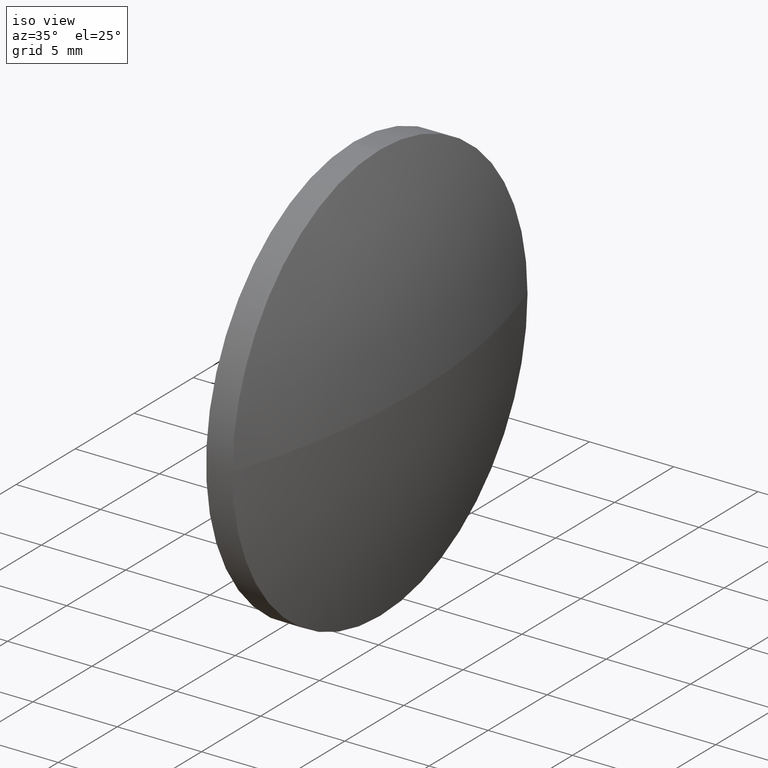
[diagram: clean part render]
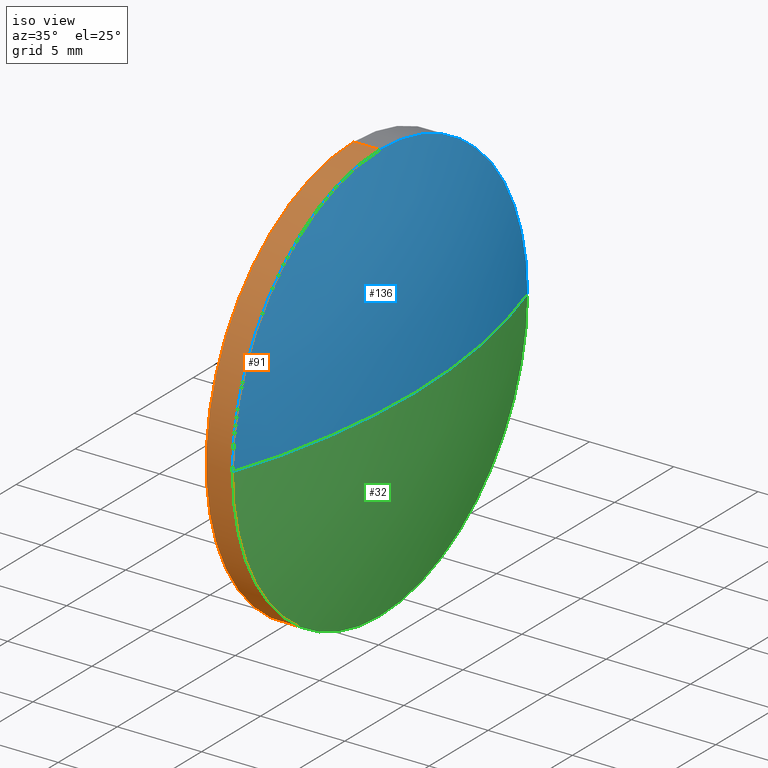
[diagram: same view with three faces highlighted in distinct colors, each labeled with its STEP entity id]
A machine part, iso view with three faces highlighted in distinct colors.
Their STEP definitions:

[orange] entity #91 — the highlighted cylindrical surface (partial cylindrical patch) has radius 12.5 mm, axis along (-1, -0, -0).
#3 = VERTEX_POINT ( 'NONE', #103 ) ;
#4 = FACE_OUTER_BOUND ( 'NONE', #112, .T. ) ;
#5 = CARTESIAN_POINT ( 'NONE',  ( 658.8084244515589500, 181.8210075417636100, 0.0000000000000000000 ) ) ;
#15 = CARTESIAN_POINT ( 'NONE',  ( 657.2484244515591200, 181.8210075417636100, -12.50000000000001100 ) ) ;
#18 = VERTEX_POINT ( 'NONE', #121 ) ;
#29 = CARTESIAN_POINT ( 'NONE',  ( 657.2484244515591200, 181.8210075417636100, 12.50000000000001100 ) ) ;
#39 = CARTESIAN_POINT ( 'NONE',  ( 658.8084244515589500, 181.8210075417636100, 0.0000000000000000000 ) ) ;
#41 = CARTESIAN_POINT ( 'NONE',  ( 658.8084244515589500, 169.3210075417636100, 0.0000000000000000000 ) ) ;
#47 = AXIS2_PLACEMENT_3D ( 'NONE', #168, #125, #96 ) ;
#49 = CARTESIAN_POINT ( 'NONE',  ( 654.8828085487981500, 181.8210075417636100, -12.50000000000001100 ) ) ;
#57 = VECTOR ( 'NONE', #151, 1000.000000000000000 ) ;
#60 = CIRCLE ( 'NONE', #148, 12.50000000000001100 ) ;
#64 = DIRECTION ( 'NONE',  ( -1.000000000000000000, -0.0000000000000000000, -0.0000000000000000000 ) ) ;
#72 = EDGE_CURVE ( 'NONE', #3, #93, #60, .T. ) ;
#76 = AXIS2_PLACEMENT_3D ( 'NONE', #39, #143, #128 ) ;
#81 = DIRECTION ( 'NONE',  ( 0.0000000000000000000, 0.0000000000000000000, 1.000000000000000000 ) ) ;
#84 = VECTOR ( 'NONE', #104, 1000.000000000000000 ) ;
#90 = EDGE_CURVE ( 'NONE', #3, #114, #139, .T. ) ;
#91 = ADVANCED_FACE ( 'NONE', ( #4 ), #147, .T. ) ;
#92 = CIRCLE ( 'NONE', #47, 12.50000000000001100 ) ;
#93 = VERTEX_POINT ( 'NONE', #41 ) ;
#96 = DIRECTION ( 'NONE',  ( 0.0000000000000000000, 0.0000000000000000000, 1.000000000000000000 ) ) ;
#97 = ORIENTED_EDGE ( 'NONE', *, *, #117, .F. ) ;
#103 = CARTESIAN_POINT ( 'NONE',  ( 658.8084244515589500, 181.8210075417636100, -12.50000000000001100 ) ) ;
#104 = DIRECTION ( 'NONE',  ( -1.000000000000000000, -0.0000000000000000000, -0.0000000000000000000 ) ) ;
#112 = EDGE_LOOP ( 'NONE', ( #161, #172, #155, #186, #97 ) ) ;
#114 = VERTEX_POINT ( 'NONE', #15 ) ;
#117 = EDGE_CURVE ( 'NONE', #114, #140, #92, .T. ) ;
#121 = CARTESIAN_POINT ( 'NONE',  ( 658.8084244515589500, 181.8210075417636100, 12.50000000000001100 ) ) ;
#125 = DIRECTION ( 'NONE',  ( -1.000000000000000000, -0.0000000000000000000, -0.0000000000000000000 ) ) ;
#128 = DIRECTION ( 'NONE',  ( 0.0000000000000000000, 0.0000000000000000000, 1.000000000000000000 ) ) ;
#134 = EDGE_CURVE ( 'NONE', #18, #140, #144, .T. ) ;
#135 = AXIS2_PLACEMENT_3D ( 'NONE', #179, #64, #175 ) ;
#138 = DIRECTION ( 'NONE',  ( -1.000000000000000000, -0.0000000000000000000, -0.0000000000000000000 ) ) ;
#139 = LINE ( 'NONE', #49, #84 ) ;
#140 = VERTEX_POINT ( 'NONE', #29 ) ;
#143 = DIRECTION ( 'NONE',  ( -1.000000000000000000, -0.0000000000000000000, -0.0000000000000000000 ) ) ;
#144 = LINE ( 'NONE', #154, #57 ) ;
#146 = EDGE_CURVE ( 'NONE', #93, #18, #165, .T. ) ;
#147 = CYLINDRICAL_SURFACE ( 'NONE', #135, 12.50000000000001100 ) ;
#148 = AXIS2_PLACEMENT_3D ( 'NONE', #5, #138, #81 ) ;
#151 = DIRECTION ( 'NONE',  ( -1.000000000000000000, -0.0000000000000000000, -0.0000000000000000000 ) ) ;
#154 = CARTESIAN_POINT ( 'NONE',  ( 654.8828085487981500, 181.8210075417636100, 12.50000000000001100 ) ) ;
#155 = ORIENTED_EDGE ( 'NONE', *, *, #146, .T. ) ;
#161 = ORIENTED_EDGE ( 'NONE', *, *, #90, .F. ) ;
#165 = CIRCLE ( 'NONE', #76, 12.50000000000001100 ) ;
#168 = CARTESIAN_POINT ( 'NONE',  ( 657.2484244515591200, 181.8210075417636100, 0.0000000000000000000 ) ) ;
#172 = ORIENTED_EDGE ( 'NONE', *, *, #72, .T. ) ;
#175 = DIRECTION ( 'NONE',  ( 0.0000000000000000000, 0.0000000000000000000, 1.000000000000000000 ) ) ;
#179 = CARTESIAN_POINT ( 'NONE',  ( 654.8828085487981500, 181.8210075417636100, 0.0000000000000000000 ) ) ;
#186 = ORIENTED_EDGE ( 'NONE', *, *, #134, .T. ) ;

[blue] entity #136 — the highlighted spherical surface has radius 39.3166 mm.
#2 = ORIENTED_EDGE ( 'NONE', *, *, #20, .T. ) ;
#6 = CARTESIAN_POINT ( 'NONE',  ( 658.8084244515589500, 194.3210075417636900, 1.530808498934192300E-015 ) ) ;
#8 = CIRCLE ( 'NONE', #159, 39.31656862745100500 ) ;
#9 = DIRECTION ( 'NONE',  ( 0.0000000000000000000, -1.224646799147353200E-016, 1.000000000000000000 ) ) ;
#16 = FACE_OUTER_BOUND ( 'NONE', #74, .T. ) ;
#18 = VERTEX_POINT ( 'NONE', #121 ) ;
#20 = EDGE_CURVE ( 'NONE', #63, #21, #8, .T. ) ;
#21 = VERTEX_POINT ( 'NONE', #6 ) ;
#22 = DIRECTION ( 'NONE',  ( -1.000000000000000000, -0.0000000000000000000, -0.0000000000000000000 ) ) ;
#27 = DIRECTION ( 'NONE',  ( 0.0000000000000000000, -1.000000000000000000, 0.0000000000000000000 ) ) ;
#36 = CARTESIAN_POINT ( 'NONE',  ( 621.5318558241079900, 181.8210075417636600, 0.0000000000000000000 ) ) ;
#39 = CARTESIAN_POINT ( 'NONE',  ( 658.8084244515589500, 181.8210075417636100, 0.0000000000000000000 ) ) ;
#40 = CIRCLE ( 'NONE', #45, 39.31656862745103400 ) ;
#41 = CARTESIAN_POINT ( 'NONE',  ( 658.8084244515589500, 169.3210075417636100, 0.0000000000000000000 ) ) ;
#45 = AXIS2_PLACEMENT_3D ( 'NONE', #36, #78, #95 ) ;
#63 = VERTEX_POINT ( 'NONE', #120 ) ;
#66 = SPHERICAL_SURFACE ( 'NONE', #113, 39.31656862745100500 ) ;
#74 = EDGE_LOOP ( 'NONE', ( #106, #2, #184, #145 ) ) ;
#75 = CIRCLE ( 'NONE', #170, 12.50000000000001100 ) ;
#76 = AXIS2_PLACEMENT_3D ( 'NONE', #39, #143, #128 ) ;
#77 = EDGE_CURVE ( 'NONE', #18, #21, #75, .T. ) ;
#78 = DIRECTION ( 'NONE',  ( 0.0000000000000000000, 0.0000000000000000000, -1.000000000000000000 ) ) ;
#89 = EDGE_CURVE ( 'NONE', #63, #93, #40, .T. ) ;
#93 = VERTEX_POINT ( 'NONE', #41 ) ;
#94 = DIRECTION ( 'NONE',  ( 0.0000000000000000000, 0.0000000000000000000, 1.000000000000000000 ) ) ;
#95 = DIRECTION ( 'NONE',  ( -1.000000000000000000, 0.0000000000000000000, 0.0000000000000000000 ) ) ;
#106 = ORIENTED_EDGE ( 'NONE', *, *, #89, .F. ) ;
#107 = CARTESIAN_POINT ( 'NONE',  ( 621.5318558241079900, 181.8210075417636600, 0.0000000000000000000 ) ) ;
#113 = AXIS2_PLACEMENT_3D ( 'NONE', #107, #129, #27 ) ;
#120 = CARTESIAN_POINT ( 'NONE',  ( 660.8484244515590300, 181.8210075417636600, 0.0000000000000000000 ) ) ;
#121 = CARTESIAN_POINT ( 'NONE',  ( 658.8084244515589500, 181.8210075417636100, 12.50000000000001100 ) ) ;
#128 = DIRECTION ( 'NONE',  ( 0.0000000000000000000, 0.0000000000000000000, 1.000000000000000000 ) ) ;
#129 = DIRECTION ( 'NONE',  ( 0.0000000000000000000, 0.0000000000000000000, 1.000000000000000000 ) ) ;
#136 = ADVANCED_FACE ( 'NONE', ( #16 ), #66, .T. ) ;
#143 = DIRECTION ( 'NONE',  ( -1.000000000000000000, -0.0000000000000000000, -0.0000000000000000000 ) ) ;
#145 = ORIENTED_EDGE ( 'NONE', *, *, #146, .F. ) ;
#146 = EDGE_CURVE ( 'NONE', #93, #18, #165, .T. ) ;
#149 = CARTESIAN_POINT ( 'NONE',  ( 621.5318558241079900, 181.8210075417636600, 0.0000000000000000000 ) ) ;
#159 = AXIS2_PLACEMENT_3D ( 'NONE', #149, #9, #163 ) ;
#163 = DIRECTION ( 'NONE',  ( 0.0000000000000000000, -1.000000000000000000, -1.224646799147353200E-016 ) ) ;
#165 = CIRCLE ( 'NONE', #76, 12.50000000000001100 ) ;
#170 = AXIS2_PLACEMENT_3D ( 'NONE', #173, #22, #94 ) ;
#173 = CARTESIAN_POINT ( 'NONE',  ( 658.8084244515589500, 181.8210075417636100, 0.0000000000000000000 ) ) ;
#184 = ORIENTED_EDGE ( 'NONE', *, *, #77, .F. ) ;

[green] entity #32 — the highlighted spherical surface has radius 39.3166 mm.
#3 = VERTEX_POINT ( 'NONE', #103 ) ;
#5 = CARTESIAN_POINT ( 'NONE',  ( 658.8084244515589500, 181.8210075417636100, 0.0000000000000000000 ) ) ;
#6 = CARTESIAN_POINT ( 'NONE',  ( 658.8084244515589500, 194.3210075417636900, 1.530808498934192300E-015 ) ) ;
#7 = DIRECTION ( 'NONE',  ( 0.0000000000000000000, -1.000000000000000000, 0.0000000000000000000 ) ) ;
#8 = CIRCLE ( 'NONE', #159, 39.31656862745100500 ) ;
#9 = DIRECTION ( 'NONE',  ( 0.0000000000000000000, -1.224646799147353200E-016, 1.000000000000000000 ) ) ;
#20 = EDGE_CURVE ( 'NONE', #63, #21, #8, .T. ) ;
#21 = VERTEX_POINT ( 'NONE', #6 ) ;
#32 = ADVANCED_FACE ( 'NONE', ( #171 ), #118, .T. ) ;
#36 = CARTESIAN_POINT ( 'NONE',  ( 621.5318558241079900, 181.8210075417636600, 0.0000000000000000000 ) ) ;
#40 = CIRCLE ( 'NONE', #45, 39.31656862745103400 ) ;
#41 = CARTESIAN_POINT ( 'NONE',  ( 658.8084244515589500, 169.3210075417636100, 0.0000000000000000000 ) ) ;
#45 = AXIS2_PLACEMENT_3D ( 'NONE', #36, #78, #95 ) ;
#52 = CARTESIAN_POINT ( 'NONE',  ( 658.8084244515589500, 181.8210075417636100, 0.0000000000000000000 ) ) ;
#60 = CIRCLE ( 'NONE', #148, 12.50000000000001100 ) ;
#63 = VERTEX_POINT ( 'NONE', #120 ) ;
#67 = DIRECTION ( 'NONE',  ( 0.0000000000000000000, 0.0000000000000000000, 1.000000000000000000 ) ) ;
#72 = EDGE_CURVE ( 'NONE', #3, #93, #60, .T. ) ;
#78 = DIRECTION ( 'NONE',  ( 0.0000000000000000000, 0.0000000000000000000, -1.000000000000000000 ) ) ;
#79 = EDGE_LOOP ( 'NONE', ( #181, #86, #166, #110 ) ) ;
#81 = DIRECTION ( 'NONE',  ( 0.0000000000000000000, 0.0000000000000000000, 1.000000000000000000 ) ) ;
#86 = ORIENTED_EDGE ( 'NONE', *, *, #89, .T. ) ;
#89 = EDGE_CURVE ( 'NONE', #63, #93, #40, .T. ) ;
#93 = VERTEX_POINT ( 'NONE', #41 ) ;
#95 = DIRECTION ( 'NONE',  ( -1.000000000000000000, 0.0000000000000000000, 0.0000000000000000000 ) ) ;
#98 = DIRECTION ( 'NONE',  ( -1.000000000000000000, -0.0000000000000000000, -0.0000000000000000000 ) ) ;
#103 = CARTESIAN_POINT ( 'NONE',  ( 658.8084244515589500, 181.8210075417636100, -12.50000000000001100 ) ) ;
#105 = CARTESIAN_POINT ( 'NONE',  ( 621.5318558241079900, 181.8210075417636600, 0.0000000000000000000 ) ) ;
#110 = ORIENTED_EDGE ( 'NONE', *, *, #157, .F. ) ;
#116 = AXIS2_PLACEMENT_3D ( 'NONE', #52, #98, #67 ) ;
#118 = SPHERICAL_SURFACE ( 'NONE', #122, 39.31656862745100500 ) ;
#119 = DIRECTION ( 'NONE',  ( 0.0000000000000000000, 0.0000000000000000000, 1.000000000000000000 ) ) ;
#120 = CARTESIAN_POINT ( 'NONE',  ( 660.8484244515590300, 181.8210075417636600, 0.0000000000000000000 ) ) ;
#122 = AXIS2_PLACEMENT_3D ( 'NONE', #105, #119, #7 ) ;
#138 = DIRECTION ( 'NONE',  ( -1.000000000000000000, -0.0000000000000000000, -0.0000000000000000000 ) ) ;
#148 = AXIS2_PLACEMENT_3D ( 'NONE', #5, #138, #81 ) ;
#149 = CARTESIAN_POINT ( 'NONE',  ( 621.5318558241079900, 181.8210075417636600, 0.0000000000000000000 ) ) ;
#157 = EDGE_CURVE ( 'NONE', #21, #3, #160, .T. ) ;
#159 = AXIS2_PLACEMENT_3D ( 'NONE', #149, #9, #163 ) ;
#160 = CIRCLE ( 'NONE', #116, 12.50000000000001100 ) ;
#163 = DIRECTION ( 'NONE',  ( 0.0000000000000000000, -1.000000000000000000, -1.224646799147353200E-016 ) ) ;
#166 = ORIENTED_EDGE ( 'NONE', *, *, #72, .F. ) ;
#171 = FACE_OUTER_BOUND ( 'NONE', #79, .T. ) ;
#181 = ORIENTED_EDGE ( 'NONE', *, *, #20, .F. ) ;